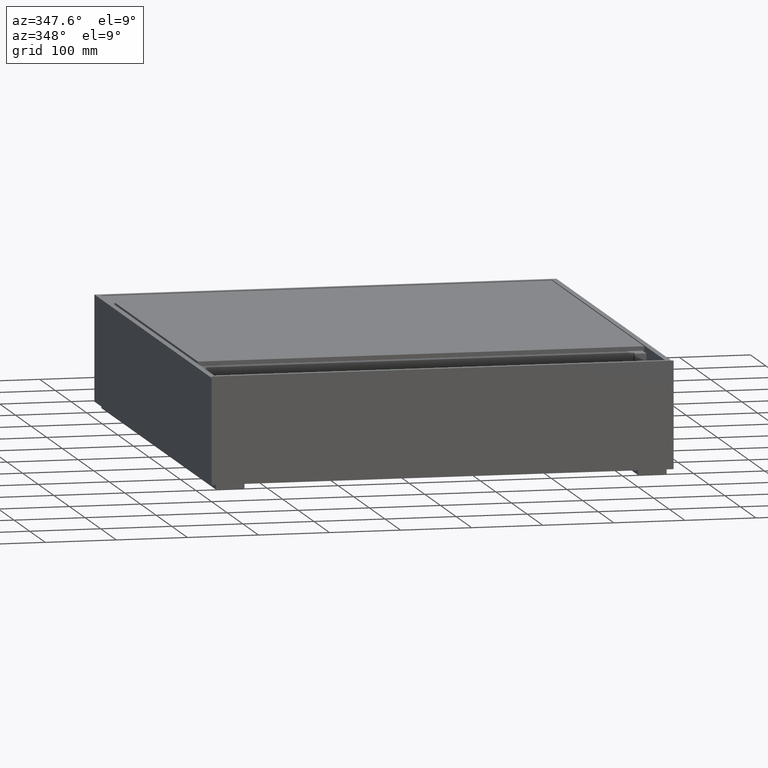
[diagram: clean part render]
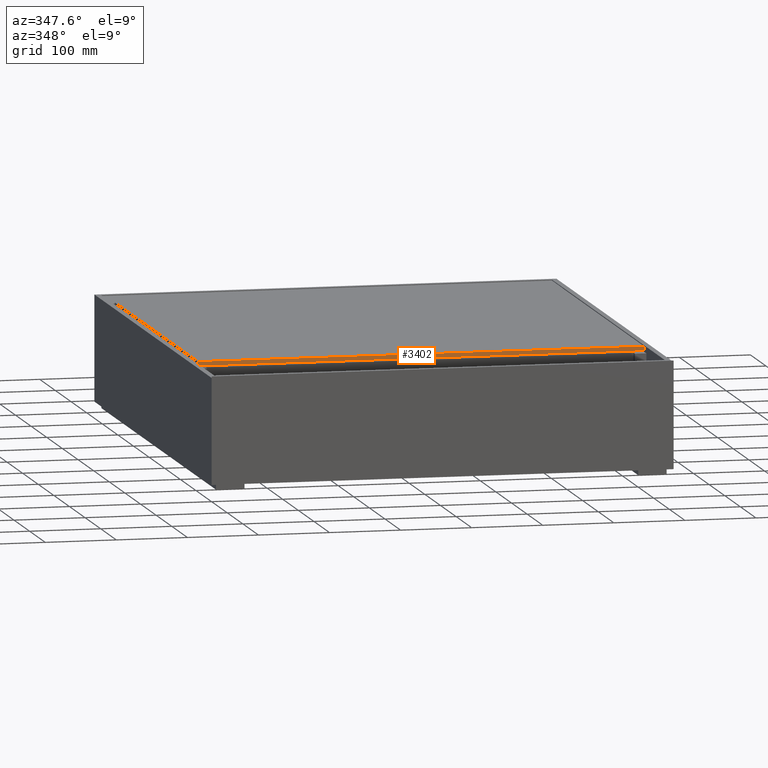
[diagram: same view with one face highlighted and labeled with its STEP entity id]
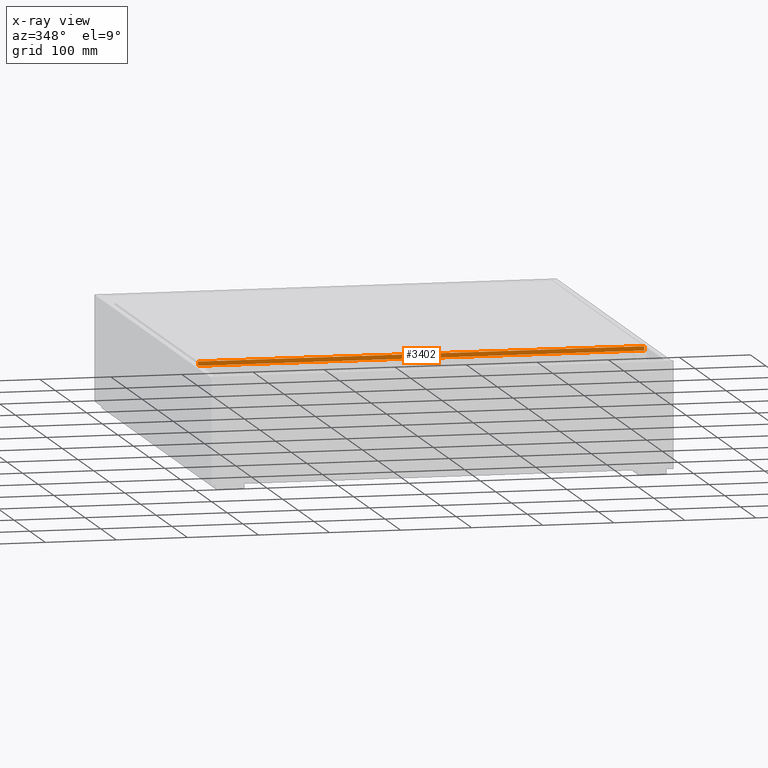
[diagram: x-ray of the same camera — body ghosted, the highlighted face saturated]
A machine part, auxiliary view. The second image highlights one B-rep face of the part: STEP entity #3402.
The next image is the same camera in x-ray: the body ghosted, the highlighted face saturated — about 0% of this face is hidden behind the body in this view.
In plain terms, the highlighted planar face has unit normal (0, 1, 0).
Its self-contained STEP definition (entity closure, byte-faithful):
#75 = EDGE_CURVE ( 'NONE', #4940, #9523, #1997, .T. ) ;
#220 = CARTESIAN_POINT ( 'NONE',  ( 639.0000000000001137, 137.9999999999999716, -5.999999999999939604 ) ) ;
#444 = CARTESIAN_POINT ( 'NONE',  ( 11.00000000000008349, 137.9999999999999716, 6.071532165918824830E-14 ) ) ;
#758 = EDGE_CURVE ( 'NONE', #8174, #5531, #4140, .T. ) ;
#1082 = CARTESIAN_POINT ( 'NONE',  ( 11.00000000000008349, 137.9999999999999716, 6.071532165918824830E-14 ) ) ;
#1181 = EDGE_CURVE ( 'NONE', #8174, #4940, #8299, .T. ) ;
#1997 = LINE ( 'NONE', #5486, #4667 ) ;
#2497 = DIRECTION ( 'NONE',  ( -0.0000000000000000000, -0.0000000000000000000, -1.000000000000000000 ) ) ;
#3402 = ADVANCED_FACE ( 'NONE', ( #5431 ), #8932, .F. ) ;
#3403 = VECTOR ( 'NONE', #11137, 1000.000000000000000 ) ;
#3944 = DIRECTION ( 'NONE',  ( -0.0000000000000000000, -0.0000000000000000000, -1.000000000000000000 ) ) ;
#4140 = LINE ( 'NONE', #7637, #3403 ) ;
#4572 = DIRECTION ( 'NONE',  ( 0.0000000000000000000, 1.000000000000000000, 0.0000000000000000000 ) ) ;
#4667 = VECTOR ( 'NONE', #8984, 1000.000000000000000 ) ;
#4930 = CARTESIAN_POINT ( 'NONE',  ( 639.0000000000001137, 137.9999999999999716, 6.071532165918824830E-14 ) ) ;
#4940 = VERTEX_POINT ( 'NONE', #6484 ) ;
#5431 = FACE_OUTER_BOUND ( 'NONE', #7620, .T. ) ;
#5486 = CARTESIAN_POINT ( 'NONE',  ( 11.00000000000008349, 137.9999999999999716, -5.999999999999939604 ) ) ;
#5531 = VERTEX_POINT ( 'NONE', #4930 ) ;
#6484 = CARTESIAN_POINT ( 'NONE',  ( 11.00000000000008349, 137.9999999999999716, -5.999999999999939604 ) ) ;
#6787 = CARTESIAN_POINT ( 'NONE',  ( 11.00000000000008349, 137.9999999999999716, 6.071532165918824830E-14 ) ) ;
#6843 = LINE ( 'NONE', #10354, #10455 ) ;
#7620 = EDGE_LOOP ( 'NONE', ( #10500, #11084, #10246, #11165 ) ) ;
#7637 = CARTESIAN_POINT ( 'NONE',  ( 11.00000000000008349, 137.9999999999999716, 6.071532165918824830E-14 ) ) ;
#8064 = DIRECTION ( 'NONE',  ( 0.0000000000000000000, -0.0000000000000000000, 1.000000000000000000 ) ) ;
#8174 = VERTEX_POINT ( 'NONE', #6787 ) ;
#8299 = LINE ( 'NONE', #444, #11049 ) ;
#8932 = PLANE ( 'NONE',  #10905 ) ;
#8984 = DIRECTION ( 'NONE',  ( 1.000000000000000000, 0.0000000000000000000, 0.0000000000000000000 ) ) ;
#9090 = EDGE_CURVE ( 'NONE', #5531, #9523, #6843, .T. ) ;
#9523 = VERTEX_POINT ( 'NONE', #220 ) ;
#10246 = ORIENTED_EDGE ( 'NONE', *, *, #758, .F. ) ;
#10354 = CARTESIAN_POINT ( 'NONE',  ( 639.0000000000001137, 137.9999999999999716, 6.071532165918824830E-14 ) ) ;
#10455 = VECTOR ( 'NONE', #2497, 1000.000000000000000 ) ;
#10500 = ORIENTED_EDGE ( 'NONE', *, *, #75, .T. ) ;
#10905 = AXIS2_PLACEMENT_3D ( 'NONE', #1082, #4572, #8064 ) ;
#11049 = VECTOR ( 'NONE', #3944, 1000.000000000000000 ) ;
#11084 = ORIENTED_EDGE ( 'NONE', *, *, #9090, .F. ) ;
#11137 = DIRECTION ( 'NONE',  ( 1.000000000000000000, 0.0000000000000000000, 0.0000000000000000000 ) ) ;
#11165 = ORIENTED_EDGE ( 'NONE', *, *, #1181, .T. ) ;